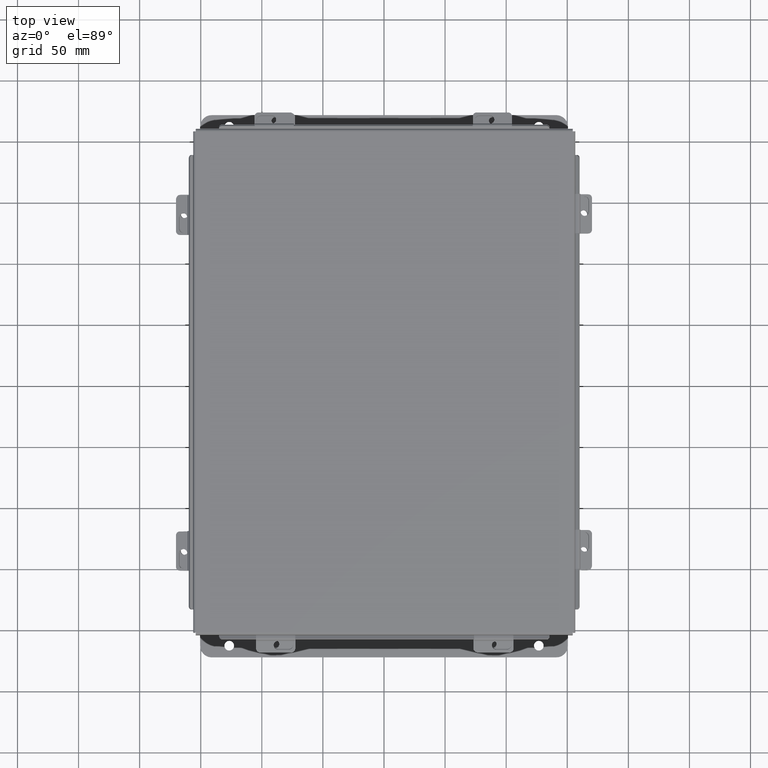
[diagram: clean part render]
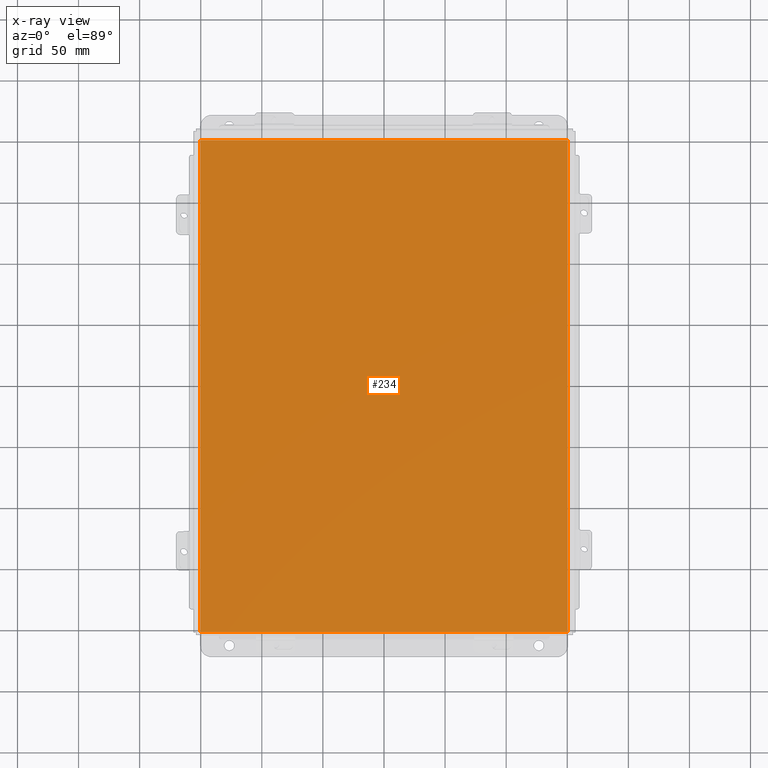
[diagram: x-ray — body ghosted, one internal face saturated and labeled with its STEP entity id]
A machine part, top view, then the same camera in x-ray: the body is ghosted and one INTERNAL B-rep face — a face not visible from any outside direction — is saturated and labeled: STEP entity #234.
In plain terms, the highlighted planar face has unit normal (0, 0, -1).
Its self-contained STEP definition (entity closure, byte-faithful):
#157 = CARTESIAN_POINT ( 'NONE',  ( -5.912300000000000100, -7.925300000000000000, 4.268512490100411300E-017 ) ) ;
#234 = ADVANCED_FACE ( 'NONE', ( #3656 ), #5679, .F. ) ;
#781 = CARTESIAN_POINT ( 'NONE',  ( 0.0000000000000000000, 0.0000000000000000000, 0.0000000000000000000 ) ) ;
#791 = VECTOR ( 'NONE', #2839, 39.37007874015748100 ) ;
#985 = LINE ( 'NONE', #2083, #791 ) ;
#1428 = VERTEX_POINT ( 'NONE', #157 ) ;
#1556 = VERTEX_POINT ( 'NONE', #5862 ) ;
#1766 = CARTESIAN_POINT ( 'NONE',  ( -6.000000000000000900, 7.925299999999998200, 0.0000000000000000000 ) ) ;
#2083 = CARTESIAN_POINT ( 'NONE',  ( -6.000000000000000900, -7.925300000000000000, 0.0000000000000000000 ) ) ;
#2680 = AXIS2_PLACEMENT_3D ( 'NONE', #781, #7966, #6285 ) ;
#2703 = VERTEX_POINT ( 'NONE', #7683 ) ;
#2839 = DIRECTION ( 'NONE',  ( 1.000000000000000000, 0.0000000000000000000, 0.0000000000000000000 ) ) ;
#3656 = FACE_OUTER_BOUND ( 'NONE', #8555, .T. ) ;
#3939 = VECTOR ( 'NONE', #7588, 39.37007874015748100 ) ;
#3946 = LINE ( 'NONE', #6080, #3939 ) ;
#4301 = LINE ( 'NONE', #1766, #8885 ) ;
#4414 = CARTESIAN_POINT ( 'NONE',  ( 5.912300000000000100, 7.925300000000000000, 4.268512490100411300E-017 ) ) ;
#5152 = ORIENTED_EDGE ( 'NONE', *, *, #6204, .F. ) ;
#5282 = ORIENTED_EDGE ( 'NONE', *, *, #7367, .T. ) ;
#5499 = VECTOR ( 'NONE', #9819, 39.37007874015748100 ) ;
#5619 = CARTESIAN_POINT ( 'NONE',  ( 5.912300000000000100, 7.925299999999997300, 4.268512490100411300E-017 ) ) ;
#5679 = PLANE ( 'NONE',  #2680 ) ;
#5862 = CARTESIAN_POINT ( 'NONE',  ( 5.912300000000000100, -7.925300000000000000, 4.268512490100411300E-017 ) ) ;
#6080 = CARTESIAN_POINT ( 'NONE',  ( -5.912300000000000100, -7.925300000000000900, 4.268512490100411300E-017 ) ) ;
#6204 = EDGE_CURVE ( 'NONE', #1428, #2703, #3946, .T. ) ;
#6232 = ORIENTED_EDGE ( 'NONE', *, *, #7911, .T. ) ;
#6285 = DIRECTION ( 'NONE',  ( -1.000000000000000000, 0.0000000000000000000, -0.0000000000000000000 ) ) ;
#7068 = DIRECTION ( 'NONE',  ( -1.000000000000000000, -0.0000000000000000000, -0.0000000000000000000 ) ) ;
#7367 = EDGE_CURVE ( 'NONE', #1428, #1556, #985, .T. ) ;
#7588 = DIRECTION ( 'NONE',  ( -0.0000000000000000000, 1.000000000000000000, -0.0000000000000000000 ) ) ;
#7680 = ORIENTED_EDGE ( 'NONE', *, *, #8365, .F. ) ;
#7683 = CARTESIAN_POINT ( 'NONE',  ( -5.912300000000000100, 7.925299999999998200, 4.268512490100411300E-017 ) ) ;
#7911 = EDGE_CURVE ( 'NONE', #8653, #2703, #4301, .T. ) ;
#7966 = DIRECTION ( 'NONE',  ( 0.0000000000000000000, 0.0000000000000000000, -1.000000000000000000 ) ) ;
#8365 = EDGE_CURVE ( 'NONE', #8653, #1556, #9366, .T. ) ;
#8555 = EDGE_LOOP ( 'NONE', ( #7680, #6232, #5152, #5282 ) ) ;
#8653 = VERTEX_POINT ( 'NONE', #5619 ) ;
#8885 = VECTOR ( 'NONE', #7068, 39.37007874015748100 ) ;
#9366 = LINE ( 'NONE', #4414, #5499 ) ;
#9819 = DIRECTION ( 'NONE',  ( -0.0000000000000000000, -1.000000000000000000, -0.0000000000000000000 ) ) ;